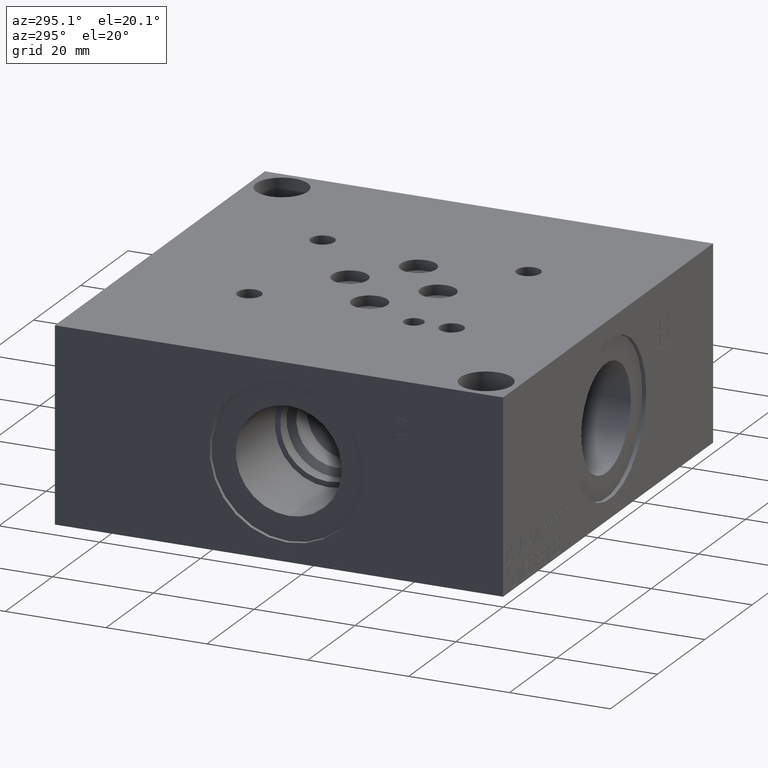
[diagram: clean part render]
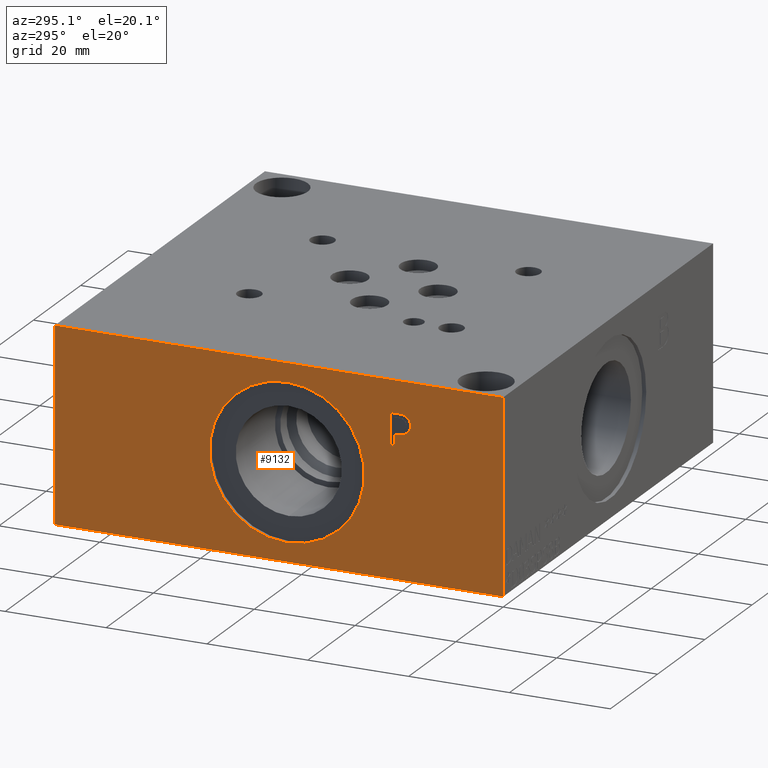
[diagram: same view with one face highlighted and labeled with its STEP entity id]
A machine part, auxiliary view. The second image highlights one B-rep face of the part: STEP entity #9132.
In plain terms, the highlighted planar face has unit normal (-1, 0, 0).
Its self-contained STEP definition (entity closure, byte-faithful):
#66=CIRCLE('',#9475,15.3416);
#67=CIRCLE('',#9476,15.3416);
#219=FACE_BOUND('',#1415,.T.);
#220=FACE_BOUND('',#1416,.T.);
#495=PLANE('',#9474);
#913=FACE_OUTER_BOUND('',#1414,.T.);
#1414=EDGE_LOOP('',(#7762,#7763,#7764,#7765));
#1415=EDGE_LOOP('',(#7766,#7767));
#1416=EDGE_LOOP('',(#7768,#7769,#7770,#7771,#7772,#7773,#7774,#7775,#7776));
#1827=LINE('',#13946,#2691);
#2289=LINE('',#15374,#3153);
#2292=LINE('',#15380,#3156);
#2295=LINE('',#15386,#3159);
#2298=LINE('',#15392,#3162);
#2301=LINE('',#15398,#3165);
#2305=LINE('',#15440,#3169);
#2306=LINE('',#15442,#3170);
#2307=LINE('',#15443,#3171);
#2691=VECTOR('',#10115,10.);
#3153=VECTOR('',#10915,10.);
#3156=VECTOR('',#10920,10.);
#3159=VECTOR('',#10925,10.);
#3162=VECTOR('',#10930,10.);
#3165=VECTOR('',#10935,10.);
#3169=VECTOR('',#10943,10.);
#3170=VECTOR('',#10944,10.);
#3171=VECTOR('',#10945,10.);
#3536=B_SPLINE_CURVE_WITH_KNOTS('',2,(#15341,#15342,#15343,#15344),
 .UNSPECIFIED.,.F.,.F.,(3,1,3),(0.,1.,2.),.UNSPECIFIED.);
#3538=B_SPLINE_CURVE_WITH_KNOTS('',2,(#15362,#15363,#15364,#15365),
 .UNSPECIFIED.,.F.,.F.,(3,1,3),(0.,1.,2.),.UNSPECIFIED.);
#3540=B_SPLINE_CURVE_WITH_KNOTS('',2,(#15411,#15412,#15413,#15414),
 .UNSPECIFIED.,.F.,.F.,(3,1,3),(0.,1.,2.),.UNSPECIFIED.);
#3542=B_SPLINE_CURVE_WITH_KNOTS('',2,(#15429,#15430,#15431,#15432),
 .UNSPECIFIED.,.F.,.F.,(3,1,3),(0.,1.,2.),.UNSPECIFIED.);
#3888=VERTEX_POINT('',#13939);
#3891=VERTEX_POINT('',#13944);
#4234=VERTEX_POINT('',#15339);
#4235=VERTEX_POINT('',#15340);
#4238=VERTEX_POINT('',#15361);
#4240=VERTEX_POINT('',#15373);
#4242=VERTEX_POINT('',#15379);
#4244=VERTEX_POINT('',#15385);
#4246=VERTEX_POINT('',#15391);
#4248=VERTEX_POINT('',#15397);
#4250=VERTEX_POINT('',#15410);
#4252=VERTEX_POINT('',#15439);
#4253=VERTEX_POINT('',#15441);
#4254=VERTEX_POINT('',#15444);
#4255=VERTEX_POINT('',#15445);
#4930=EDGE_CURVE('',#3888,#3891,#1827,.T.);
#5443=EDGE_CURVE('',#4234,#4235,#3536,.T.);
#5447=EDGE_CURVE('',#4238,#4234,#3538,.T.);
#5450=EDGE_CURVE('',#4240,#4238,#2289,.T.);
#5453=EDGE_CURVE('',#4242,#4240,#2292,.T.);
#5456=EDGE_CURVE('',#4244,#4242,#2295,.T.);
#5459=EDGE_CURVE('',#4246,#4244,#2298,.T.);
#5462=EDGE_CURVE('',#4248,#4246,#2301,.T.);
#5465=EDGE_CURVE('',#4250,#4248,#3540,.T.);
#5468=EDGE_CURVE('',#4235,#4250,#3542,.T.);
#5470=EDGE_CURVE('',#4252,#3888,#2305,.T.);
#5471=EDGE_CURVE('',#4253,#3891,#2306,.T.);
#5472=EDGE_CURVE('',#4252,#4253,#2307,.T.);
#5473=EDGE_CURVE('',#4254,#4255,#66,.T.);
#5474=EDGE_CURVE('',#4255,#4254,#67,.T.);
#7762=ORIENTED_EDGE('',*,*,#5470,.T.);
#7763=ORIENTED_EDGE('',*,*,#4930,.T.);
#7764=ORIENTED_EDGE('',*,*,#5471,.F.);
#7765=ORIENTED_EDGE('',*,*,#5472,.F.);
#7766=ORIENTED_EDGE('',*,*,#5473,.T.);
#7767=ORIENTED_EDGE('',*,*,#5474,.T.);
#7768=ORIENTED_EDGE('',*,*,#5443,.T.);
#7769=ORIENTED_EDGE('',*,*,#5468,.T.);
#7770=ORIENTED_EDGE('',*,*,#5465,.T.);
#7771=ORIENTED_EDGE('',*,*,#5462,.T.);
#7772=ORIENTED_EDGE('',*,*,#5459,.T.);
#7773=ORIENTED_EDGE('',*,*,#5456,.T.);
#7774=ORIENTED_EDGE('',*,*,#5453,.T.);
#7775=ORIENTED_EDGE('',*,*,#5450,.T.);
#7776=ORIENTED_EDGE('',*,*,#5447,.T.);
#9132=ADVANCED_FACE('',(#913,#219,#220),#495,.T.);
#9474=AXIS2_PLACEMENT_3D('',#15438,#10941,#10942);
#9475=AXIS2_PLACEMENT_3D('',#15446,#10946,#10947);
#9476=AXIS2_PLACEMENT_3D('',#15447,#10948,#10949);
#10115=DIRECTION('',(0.,0.,1.));
#10915=DIRECTION('',(0.,-1.,-2.78387652113387E-15));
#10920=DIRECTION('',(0.,-3.49676548440641E-15,1.));
#10925=DIRECTION('',(0.,1.,5.26220561921647E-15));
#10930=DIRECTION('',(0.,3.75218139805E-15,-1.));
#10935=DIRECTION('',(0.,1.,6.20864547878776E-15));
#10941=DIRECTION('center_axis',(-1.,0.,0.));
#10942=DIRECTION('ref_axis',(0.,-1.,0.));
#10943=DIRECTION('',(0.,-1.,0.));
#10944=DIRECTION('',(0.,-1.,0.));
#10945=DIRECTION('',(0.,0.,1.));
#10946=DIRECTION('center_axis',(1.,0.,0.));
#10947=DIRECTION('ref_axis',(0.,0.,1.));
#10948=DIRECTION('center_axis',(1.,0.,0.));
#10949=DIRECTION('ref_axis',(0.,0.,1.));
#13939=CARTESIAN_POINT('',(0.,0.,0.));
#13944=CARTESIAN_POINT('',(0.,0.,38.1));
#13946=CARTESIAN_POINT('',(0.,0.,0.));
#15339=CARTESIAN_POINT('',(0.,19.1181827976406,31.3537681439707));
#15340=CARTESIAN_POINT('',(0.,18.361740345468,29.8357373726039));
#15341=CARTESIAN_POINT('Ctrl Pts',(0.,19.1181827976406,31.3537681439707));
#15342=CARTESIAN_POINT('Ctrl Pts',(0.,18.7631179731514,31.1119123939563));
#15343=CARTESIAN_POINT('Ctrl Pts',(0.,18.361740345468,30.3657616758269));
#15344=CARTESIAN_POINT('Ctrl Pts',(0.,18.361740345468,29.8357373726039));
#15361=CARTESIAN_POINT('',(0.,20.7802978456117,31.7499999046326));
#15362=CARTESIAN_POINT('Ctrl Pts',(0.,20.7802978456117,31.7499999046326));
#15363=CARTESIAN_POINT('Ctrl Pts',(0.,20.2142524732376,31.7499999046326));
#15364=CARTESIAN_POINT('Ctrl Pts',(0.,19.421788951914,31.5647486918556));
#15365=CARTESIAN_POINT('Ctrl Pts',(0.,19.1181827976406,31.3537681439707));
#15373=CARTESIAN_POINT('',(0.,22.3755166223022,31.7499999046326));
#15374=CARTESIAN_POINT('',(0.,55.6377583111511,31.7499999046327));
#15379=CARTESIAN_POINT('',(0.,22.3755166223022,25.4));
#15380=CARTESIAN_POINT('',(0.,22.3755166223023,12.6999999999999));
#15385=CARTESIAN_POINT('',(0.,21.5315944307627,25.4));
#15386=CARTESIAN_POINT('',(0.,55.2157972153813,25.4000000000002));
#15391=CARTESIAN_POINT('',(0.,21.5315944307627,27.7670988299279));
#15392=CARTESIAN_POINT('',(0.,21.5315944307628,13.8835494149638));
#15397=CARTESIAN_POINT('',(0.,20.8163189147628,27.7670988299278));
#15398=CARTESIAN_POINT('',(0.,54.8581594573813,27.7670988299281));
#15410=CARTESIAN_POINT('',(0.,18.9174939837989,28.4257698086904));
#15411=CARTESIAN_POINT('Ctrl Pts',(0.,18.9174939837989,28.4257698086904));
#15412=CARTESIAN_POINT('Ctrl Pts',(0.,19.2468294731802,28.1015801863307));
#15413=CARTESIAN_POINT('Ctrl Pts',(0.,20.1370644679139,27.7670988299278));
#15414=CARTESIAN_POINT('Ctrl Pts',(0.,20.8163189147628,27.7670988299278));
#15429=CARTESIAN_POINT('Ctrl Pts',(0.,18.361740345468,29.8357373726039));
#15430=CARTESIAN_POINT('Ctrl Pts',(0.,18.361740345468,29.4240680108773));
#15431=CARTESIAN_POINT('Ctrl Pts',(0.,18.6550547656982,28.6830631597695));
#15432=CARTESIAN_POINT('Ctrl Pts',(0.,18.9174939837989,28.4257698086904));
#15438=CARTESIAN_POINT('Origin',(0.,88.9,0.));
#15439=CARTESIAN_POINT('',(0.,88.9,0.));
#15440=CARTESIAN_POINT('',(0.,88.9,0.));
#15441=CARTESIAN_POINT('',(0.,88.9,38.1));
#15442=CARTESIAN_POINT('',(0.,88.9,38.1));
#15443=CARTESIAN_POINT('',(0.,88.9,0.));
#15444=CARTESIAN_POINT('',(0.,42.8752,34.3916));
#15445=CARTESIAN_POINT('',(0.,42.8752,3.7084));
#15446=CARTESIAN_POINT('Origin',(0.,42.8752,19.05));
#15447=CARTESIAN_POINT('Origin',(0.,42.8752,19.05));